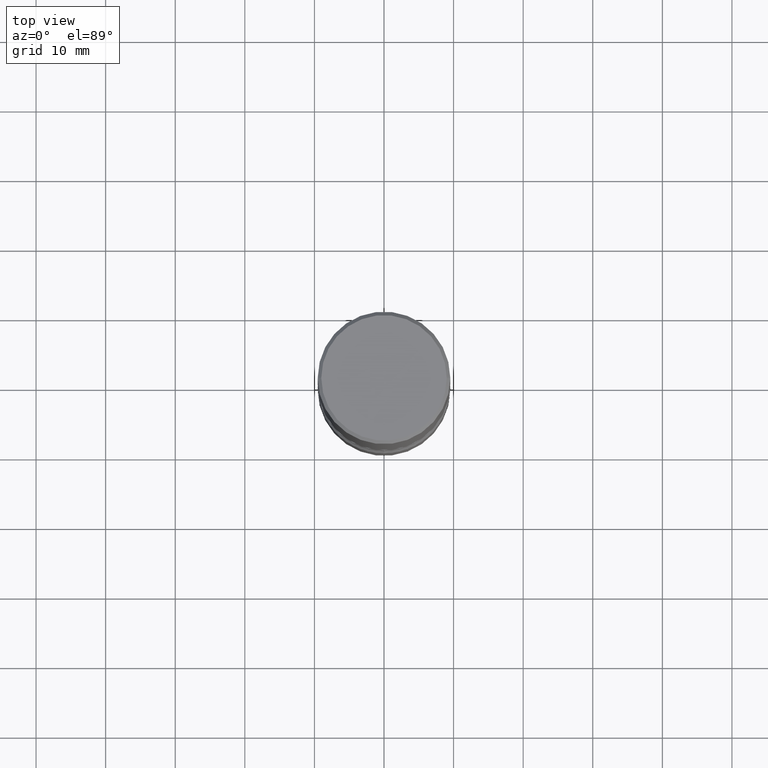
[diagram: clean part render]
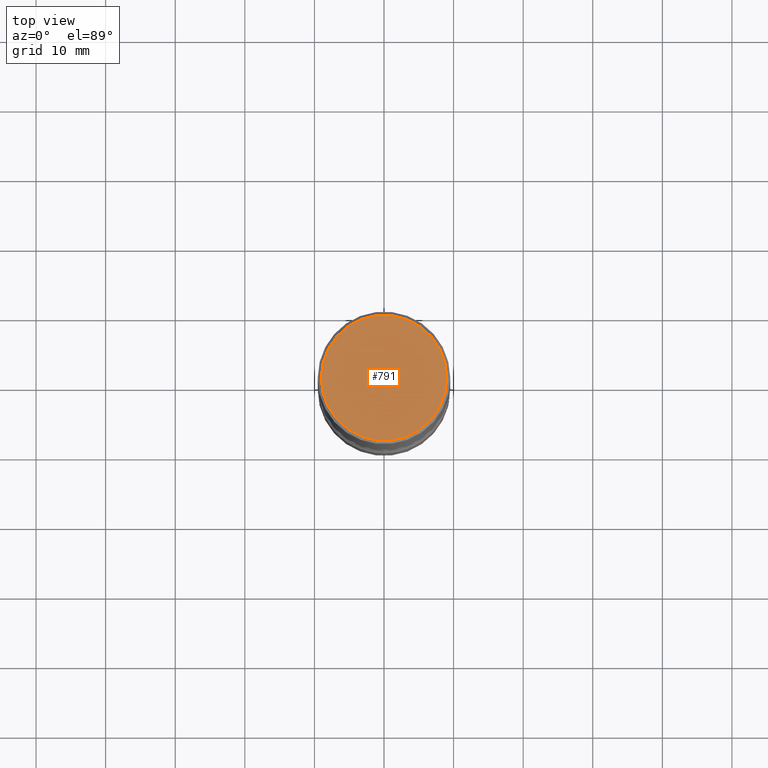
[diagram: same view with one face highlighted and labeled with its STEP entity id]
A machine part, top view. The second image highlights one B-rep face of the part: STEP entity #791.
In plain terms, the highlighted planar face has unit normal (0, -0, -1).
Its self-contained STEP definition (entity closure, byte-faithful):
#5 = PLANE ( 'NONE',  #312 ) ;
#6 = ORIENTED_EDGE ( 'NONE', *, *, #333, .T. ) ;
#49 = DIRECTION ( 'NONE',  ( 1.000000000000000000, -6.982962677686265922E-15, 4.876231632511992107E-29 ) ) ;
#63 = DIRECTION ( 'NONE',  ( 2.438088387897960049E-29, -3.491481338843145188E-15, -1.000000000000000000 ) ) ;
#106 = EDGE_LOOP ( 'NONE', ( #6, #435 ) ) ;
#136 = CARTESIAN_POINT ( 'NONE',  ( 2.478951750578622237E-15, 0.3549999999999997047, -1.233073106554165014E-15 ) ) ;
#197 = EDGE_CURVE ( 'NONE', #642, #781, #309, .T. ) ;
#228 = AXIS2_PLACEMENT_3D ( 'NONE', #248, #607, #49 ) ;
#241 = CARTESIAN_POINT ( 'NONE',  ( 0.3549999999999997047, -2.538996582575039076E-15, 1.280553747031877983E-17 ) ) ;
#248 = CARTESIAN_POINT ( 'NONE',  ( -3.131554243005659264E-46, 4.471029511141341874E-32, 1.280553747030123384E-17 ) ) ;
#309 = CIRCLE ( 'NONE', #788, 0.3549999999999997047 ) ;
#312 = AXIS2_PLACEMENT_3D ( 'NONE', #136, #63, #384 ) ;
#333 = EDGE_CURVE ( 'NONE', #781, #642, #713, .T. ) ;
#384 = DIRECTION ( 'NONE',  ( -1.000000000000000000, 6.982962677686265922E-15, -4.876176775795935793E-29 ) ) ;
#414 = CARTESIAN_POINT ( 'NONE',  ( -3.131554243005659264E-46, 4.471029511141341874E-32, 1.280553747030123384E-17 ) ) ;
#435 = ORIENTED_EDGE ( 'NONE', *, *, #197, .T. ) ;
#607 = DIRECTION ( 'NONE',  ( -2.445468806185136597E-29, 3.491481338843145583E-15, 1.000000000000000000 ) ) ;
#638 = DIRECTION ( 'NONE',  ( 1.000000000000000000, -6.982962677686265922E-15, 4.876231632511992107E-29 ) ) ;
#642 = VERTEX_POINT ( 'NONE', #241 ) ;
#696 = FACE_OUTER_BOUND ( 'NONE', #106, .T. ) ;
#713 = CIRCLE ( 'NONE', #228, 0.3549999999999997047 ) ;
#771 = DIRECTION ( 'NONE',  ( -2.445468806185136597E-29, 3.491481338843145583E-15, 1.000000000000000000 ) ) ;
#781 = VERTEX_POINT ( 'NONE', #804 ) ;
#788 = AXIS2_PLACEMENT_3D ( 'NONE', #414, #771, #638 ) ;
#791 = ADVANCED_FACE ( 'NONE', ( #696 ), #5, .F. ) ;
#804 = CARTESIAN_POINT ( 'NONE',  ( -0.3549999999999997047, 2.513866563967053491E-15, 1.280553747028377567E-17 ) ) ;